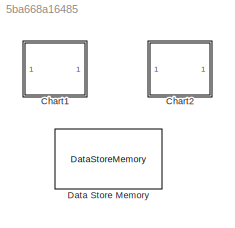
MODEL slx_5ba668a16485
KIND model
CONFIG AbsTol = auto
CONFIG EnableMultiTasking = off
CONFIG FixedStep = auto
CONFIG MaxStep = auto
CONFIG MinStep = auto
CONFIG RelTol = 1e-3
CONFIG SampleTimeConstraint = Unconstrained
CONFIG Solver = VariableStepAuto
CONFIG SolverName = VariableStepAuto
CONFIG StartTime = 0.0
CONFIG StopTime = 0.3
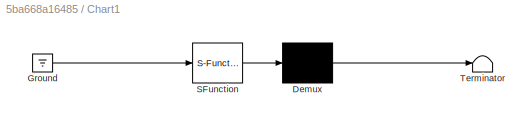
BLOCK [SubSystem] Chart1
  ErrorFcn = Stateflow.Translate.translate
  PermitHierarchicalResolution = ExplicitOnly
  Ports = []
  RequestExecContextInheritance = off
  SFBlockType = Chart
  TreatAsAtomicUnit = on
BLOCK [Demux] Chart1/ Demux 
  Outputs = 1
  Ports = [1, 1]
BLOCK [Ground] Chart1/ Ground 
BLOCK [S-Function] Chart1/ SFunction 
  EnableBusSupport = on
  FunctionName = sf_sfun
  PortCounts = [1 1]
  Ports = [1, 1]
  SFcnIsStateOwnerBlock = off
  SFunctionDeploymentMode = off
  Tag = Stateflow S-Function 3
BLOCK [Terminator] Chart1/ Terminator 
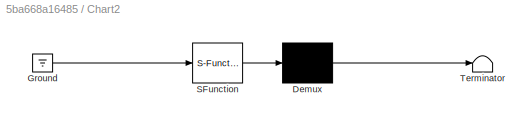
BLOCK [SubSystem] Chart2
  ErrorFcn = Stateflow.Translate.translate
  PermitHierarchicalResolution = ExplicitOnly
  Ports = []
  RequestExecContextInheritance = off
  SFBlockType = Chart
  TreatAsAtomicUnit = on
BLOCK [Demux] Chart2/ Demux 
  Outputs = 1
  Ports = [1, 1]
BLOCK [Ground] Chart2/ Ground 
BLOCK [S-Function] Chart2/ SFunction 
  EnableBusSupport = on
  FunctionName = sf_sfun
  PortCounts = [1 1]
  Ports = [1, 1]
  SFcnIsStateOwnerBlock = off
  SFunctionDeploymentMode = off
  Tag = Stateflow S-Function 1
BLOCK [Terminator] Chart2/ Terminator 
BLOCK [DataStoreMemory] Data Store Memory
  DataStoreName = myglobal
  InitialValue = [0,0]
  OutDataTypeStr = int32
  ReadBeforeWriteMsg = warning
  ShowAdditionalParam = off
  SignalType = real
  WriteAfterReadMsg = warning
  WriteAfterWriteMsg = warning
CHART Chart2 states=2 transitions=1
  STATE_LABEL 'A1\nen:f("en_A1");\nmyglobal(2)=4;\ndu:f("du_A1");'
  STATE_LABEL 'f(s)'
  STATE_LABEL 'SCRIPT:\nfunction f(s)\n  fprintf(s+" %d %d\\n", myglobal(1), myglobal(2));'
CHART Chart1 states=4 transitions=3
  STATE_LABEL 'A\nen: f("en_A");\n [myglobal(1)]=duA();\n'
  STATE_LABEL 'y1 = duA'
  STATE_LABEL 'SCRIPT:\nfunction y1 = duA\n  y1=3;\n'
  STATE_LABEL 'f(s)'
  STATE_LABEL 'SCRIPT:\nfunction f(s)\n  fprintf(s+" %d %d\\n", myglobal(1), myglobal(2));'
  STATE_LABEL 'B\nen:f("en_B");\nmyglobal(2)=0;\n'
CHART  states=0 transitions=0
CHART  states=0 transitions=0
